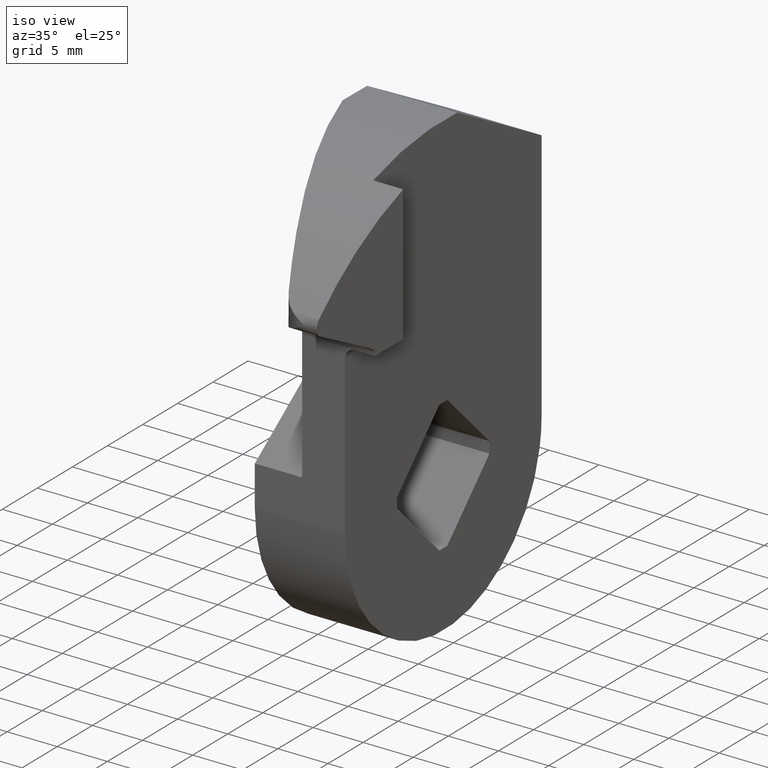
[diagram: clean part render]
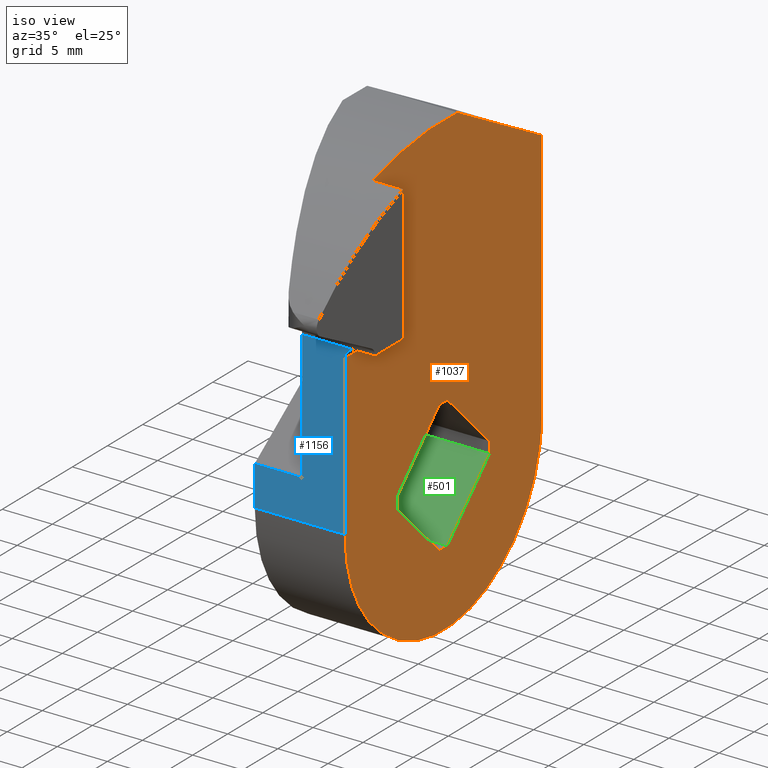
[diagram: same view with three faces highlighted in distinct colors, each labeled with its STEP entity id]
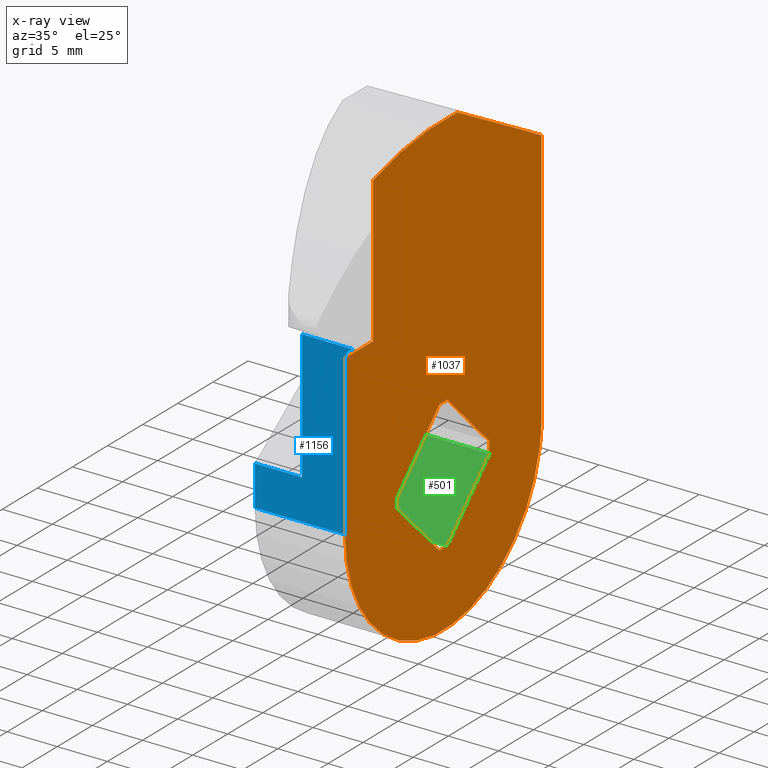
[diagram: x-ray of the same camera — body ghosted, the three highlighted faces saturated]
A machine part, iso view with three faces highlighted in distinct colors.
The next image is the same camera in x-ray (body ghosted, the three faces saturated) — at least one of them is partly hidden behind the body in this view.
Their STEP definitions:

[orange] entity #1037 — the highlighted face is a freeform B-spline surface patch.
#363=CARTESIAN_POINT('',(9.000000000000119,-6.575677091096340,0.566101398693485));
#364=VERTEX_POINT('',#363);
#370=CARTESIAN_POINT('',(9.000000000000119,-6.575677091094510,-0.566101398766254));
#371=VERTEX_POINT('',#370);
#372=CARTESIAN_POINT('',(9.000000000000119,-6.575677091096337,0.566101398693484));
#373=CARTESIAN_POINT('',(9.000000000000119,-6.624412877418935,-3.646480E-011));
#374=CARTESIAN_POINT('',(9.000000000000119,-6.575677091094510,-0.566101398766254));
#382=(BOUNDED_CURVE()B_SPLINE_CURVE(2,(#372,#373,#374),.UNSPECIFIED.,.F.,.U.)CURVE()GEOMETRIC_REPRESENTATION_ITEM()QUASI_UNIFORM_CURVE()RATIONAL_B_SPLINE_CURVE((1.0,0.996314710772021,1.0))REPRESENTATION_ITEM(''));
#383=EDGE_CURVE('',#364,#371,#382,.T.);
#406=CARTESIAN_POINT('',(9.000000000000119,-0.566101399067535,-6.575677091092260));
#407=VERTEX_POINT('',#406);
#408=CARTESIAN_POINT('',(9.000000000000119,-0.566101399067535,-6.575677091092260));
#409=CARTESIAN_POINT('',(9.000000000000119,-6.575677091094510,-0.566101398766254));
#410=QUASI_UNIFORM_CURVE('',1,(#408,#409),.UNSPECIFIED.,.F.,.U.);
#411=EDGE_CURVE('',#407,#371,#410,.T.);
#451=CARTESIAN_POINT('',(9.000000000000119,0.566101398740173,-6.575677091120500));
#452=VERTEX_POINT('',#451);
#453=CARTESIAN_POINT('',(9.000000000000119,-0.566101399067535,-6.575677091092261));
#454=CARTESIAN_POINT('',(9.000000000000119,-1.648992E-010,-6.624412877459905));
#455=CARTESIAN_POINT('',(9.000000000000119,0.566101398740173,-6.575677091120500));
#463=(BOUNDED_CURVE()B_SPLINE_CURVE(2,(#453,#454,#455),.UNSPECIFIED.,.F.,.U.)CURVE()GEOMETRIC_REPRESENTATION_ITEM()QUASI_UNIFORM_CURVE()RATIONAL_B_SPLINE_CURVE((1.0,0.996314710769752,1.0))REPRESENTATION_ITEM(''));
#464=EDGE_CURVE('',#407,#452,#463,.T.);
#487=CARTESIAN_POINT('',(9.000000000000119,6.575677091096139,-0.566101398745434));
#488=VERTEX_POINT('',#487);
#489=CARTESIAN_POINT('',(9.000000000000119,6.575677091096139,-0.566101398745434));
#490=CARTESIAN_POINT('',(9.000000000000119,0.566101398740173,-6.575677091120500));
#491=QUASI_UNIFORM_CURVE('',1,(#489,#490),.UNSPECIFIED.,.F.,.U.);
#492=EDGE_CURVE('',#488,#452,#491,.T.);
#532=CARTESIAN_POINT('',(9.000000000000119,6.575677091064520,0.566101399061946));
#533=VERTEX_POINT('',#532);
#534=CARTESIAN_POINT('',(9.000000000000119,6.575677091096138,-0.566101398745436));
#535=CARTESIAN_POINT('',(9.000000000000119,6.624412877433810,1.596133E-010));
#536=CARTESIAN_POINT('',(9.000000000000119,6.575677091064520,0.566101399061946));
#544=(BOUNDED_CURVE()B_SPLINE_CURVE(2,(#534,#535,#536),.UNSPECIFIED.,.F.,.U.)CURVE()GEOMETRIC_REPRESENTATION_ITEM()QUASI_UNIFORM_CURVE()RATIONAL_B_SPLINE_CURVE((1.0,0.996314710769754,1.0))REPRESENTATION_ITEM(''));
#545=EDGE_CURVE('',#488,#533,#544,.T.);
#568=CARTESIAN_POINT('',(9.000000000000119,0.566101399067335,6.575677091040300));
#569=VERTEX_POINT('',#568);
#570=CARTESIAN_POINT('',(9.000000000000119,0.566101399067335,6.575677091040300));
#571=CARTESIAN_POINT('',(9.000000000000119,6.575677091064520,0.566101399061946));
#572=QUASI_UNIFORM_CURVE('',1,(#570,#571),.UNSPECIFIED.,.F.,.U.);
#573=EDGE_CURVE('',#569,#533,#572,.T.);
#613=CARTESIAN_POINT('',(9.000000000000119,-0.566101398740303,6.575677091068470));
#614=VERTEX_POINT('',#613);
#615=CARTESIAN_POINT('',(9.000000000000119,0.566101399067336,6.575677091040299));
#616=CARTESIAN_POINT('',(9.000000000000119,1.647282E-010,6.624412877407941));
#617=CARTESIAN_POINT('',(9.000000000000119,-0.566101398740302,6.575677091068471));
#625=(BOUNDED_CURVE()B_SPLINE_CURVE(2,(#615,#616,#617),.UNSPECIFIED.,.F.,.U.)CURVE()GEOMETRIC_REPRESENTATION_ITEM()QUASI_UNIFORM_CURVE()RATIONAL_B_SPLINE_CURVE((1.0,0.996314710769752,1.0))REPRESENTATION_ITEM(''));
#626=EDGE_CURVE('',#569,#614,#625,.T.);
#647=CARTESIAN_POINT('',(9.000000000000119,-6.575677091096340,0.566101398693485));
#648=CARTESIAN_POINT('',(9.000000000000119,-0.566101398740303,6.575677091068470));
#649=QUASI_UNIFORM_CURVE('',1,(#647,#648),.UNSPECIFIED.,.F.,.U.);
#650=EDGE_CURVE('',#364,#614,#649,.T.);
#670=CARTESIAN_POINT('',(9.000000000000119,-14.000000000046020,15.896964971914050));
#671=VERTEX_POINT('',#670);
#687=CARTESIAN_POINT('',(9.000000000000108,-9.999999999979409,15.896964971914150));
#688=VERTEX_POINT('',#687);
#689=CARTESIAN_POINT('',(9.000000000000108,-9.999999999979409,15.896964971914150));
#690=CARTESIAN_POINT('',(9.000000000000119,-14.000000000046020,15.896964971914050));
#691=QUASI_UNIFORM_CURVE('',1,(#689,#690),.UNSPECIFIED.,.F.,.U.);
#692=EDGE_CURVE('',#688,#671,#691,.T.);
#878=CARTESIAN_POINT('',(9.000000000000119,-10.000000000021419,30.397368307108199));
#879=VERTEX_POINT('',#878);
#880=CARTESIAN_POINT('',(9.000000000000108,-9.999999999979409,15.896964971914150));
#881=CARTESIAN_POINT('',(9.000000000000119,-10.000000000021419,30.397368307108199));
#882=QUASI_UNIFORM_CURVE('',1,(#880,#881),.UNSPECIFIED.,.F.,.U.);
#883=EDGE_CURVE('',#688,#879,#882,.T.);
#967=CARTESIAN_POINT('',(9.000000000000108,-15.398599945778880,34.297687826073840));
#968=CARTESIAN_POINT('',(9.000000000000108,15.398600696751391,34.297687826073840));
#969=CARTESIAN_POINT('',(9.000000000000108,-15.398599945778880,-16.297700569757410));
#970=CARTESIAN_POINT('',(9.000000000000108,15.398600696751391,-16.297700569757410));
#971=B_SPLINE_SURFACE_WITH_KNOTS('',1,1,((#967,#969),(#968,#970)),.UNSPECIFIED.,.F.,.F.,.U.,(2,2),(2,2),(0.0,30.797200642530271),(0.0,50.595388395831250),.UNSPECIFIED.);
#972=ORIENTED_EDGE('',*,*,#883,.F.);
#973=ORIENTED_EDGE('',*,*,#692,.T.);
#974=CARTESIAN_POINT('',(9.000000000000119,-14.0,-2.620831E-011));
#975=VERTEX_POINT('',#974);
#976=CARTESIAN_POINT('',(9.000000000000119,-14.0,-2.620831E-011));
#977=CARTESIAN_POINT('',(9.000000000000119,-14.000000000046020,15.896964971914050));
#978=QUASI_UNIFORM_CURVE('',1,(#976,#977),.UNSPECIFIED.,.F.,.U.);
#979=EDGE_CURVE('',#975,#671,#978,.T.);
#980=ORIENTED_EDGE('',*,*,#979,.F.);
#981=CARTESIAN_POINT('',(9.000000000000119,14.0,-2.598191E-011));
#982=VERTEX_POINT('',#981);
#983=CARTESIAN_POINT('',(9.000000000000119,-14.0,-2.620831E-011));
#984=CARTESIAN_POINT('',(9.000000000000119,-13.999999999999929,-14.000000000026098));
#985=CARTESIAN_POINT('',(9.000000000000119,7.105427E-014,-14.000000000026100));
#986=CARTESIAN_POINT('',(9.000000000000119,14.000000000000071,-14.000000000026098));
#987=CARTESIAN_POINT('',(9.000000000000119,14.0,-2.598191E-011));
#995=(BOUNDED_CURVE()B_SPLINE_CURVE(2,(#983,#984,#985,#986,#987),.UNSPECIFIED.,.F.,.U.)B_SPLINE_CURVE_WITH_KNOTS((3,2,3),(0.0,0.500000000000000,1.0),.UNSPECIFIED.)CURVE()GEOMETRIC_REPRESENTATION_ITEM()RATIONAL_B_SPLINE_CURVE((1.0,0.707106781186547,1.0,0.707106781186547,1.0))REPRESENTATION_ITEM(''));
#996=EDGE_CURVE('',#975,#982,#995,.T.);
#997=ORIENTED_EDGE('',*,*,#996,.T.);
#998=CARTESIAN_POINT('',(9.000000000000119,13.999999999982441,25.300000000086751));
#999=VERTEX_POINT('',#998);
#1000=CARTESIAN_POINT('',(9.000000000000119,13.999999999982441,25.300000000086751));
#1001=CARTESIAN_POINT('',(9.000000000000119,14.0,-2.598191E-011));
#1002=QUASI_UNIFORM_CURVE('',1,(#1000,#1001),.UNSPECIFIED.,.F.,.U.);
#1003=EDGE_CURVE('',#999,#982,#1002,.T.);
#1004=ORIENTED_EDGE('',*,*,#1003,.F.);
#1005=CARTESIAN_POINT('',(9.000000000000119,2.000000000209915,31.937438845303401));
#1006=VERTEX_POINT('',#1005);
#1007=CARTESIAN_POINT('',(9.000000000000119,2.000000000209915,31.937438845303401));
#1008=CARTESIAN_POINT('',(9.000000000000119,13.999999999982441,25.300000000086751));
#1009=QUASI_UNIFORM_CURVE('',1,(#1007,#1008),.UNSPECIFIED.,.F.,.U.);
#1010=EDGE_CURVE('',#1006,#999,#1009,.T.);
#1011=ORIENTED_EDGE('',*,*,#1010,.F.);
#1012=CARTESIAN_POINT('',(9.000000000000119,2.000000000209921,31.937438845303380));
#1013=CARTESIAN_POINT('',(9.000000000000119,-4.148238578822799,32.322456479901653));
#1014=CARTESIAN_POINT('',(9.000000000000119,-10.000000000021389,30.397368307108170));
#1022=(BOUNDED_CURVE()B_SPLINE_CURVE(2,(#1012,#1013,#1014),.UNSPECIFIED.,.F.,.U.)CURVE()GEOMETRIC_REPRESENTATION_ITEM()QUASI_UNIFORM_CURVE()RATIONAL_B_SPLINE_CURVE((1.0,0.981969802514193,1.0))REPRESENTATION_ITEM(''));
#1023=EDGE_CURVE('',#1006,#879,#1022,.T.);
#1024=ORIENTED_EDGE('',*,*,#1023,.T.);
#1025=EDGE_LOOP('',(#972,#973,#980,#997,#1004,#1011,#1024));
#1026=FACE_OUTER_BOUND('',#1025,.T.);
#1027=ORIENTED_EDGE('',*,*,#650,.T.);
#1028=ORIENTED_EDGE('',*,*,#626,.F.);
#1029=ORIENTED_EDGE('',*,*,#573,.T.);
#1030=ORIENTED_EDGE('',*,*,#545,.F.);
#1031=ORIENTED_EDGE('',*,*,#492,.T.);
#1032=ORIENTED_EDGE('',*,*,#464,.F.);
#1033=ORIENTED_EDGE('',*,*,#411,.T.);
#1034=ORIENTED_EDGE('',*,*,#383,.F.);
#1035=EDGE_LOOP('',(#1027,#1028,#1029,#1030,#1031,#1032,#1033,#1034));
#1036=FACE_BOUND('',#1035,.T.);
#1037=ADVANCED_FACE('',(#1026,#1036),#971,.F.);

[blue] entity #1156 — the highlighted face is a freeform B-spline surface patch.
#58=CARTESIAN_POINT('',(4.622499999999860,-14.000000000011500,3.999999999987105));
#59=VERTEX_POINT('',#58);
#93=CARTESIAN_POINT('',(1.110223E-013,-14.000000000011500,3.999999999987105));
#94=VERTEX_POINT('',#93);
#100=CARTESIAN_POINT('',(4.622499999999860,-14.000000000011500,3.999999999987105));
#101=CARTESIAN_POINT('',(1.110223E-013,-14.000000000011500,3.999999999987105));
#102=QUASI_UNIFORM_CURVE('',1,(#100,#101),.UNSPECIFIED.,.F.,.U.);
#103=EDGE_CURVE('',#59,#94,#102,.T.);
#114=CARTESIAN_POINT('',(4.719941373838021,-14.000000000011500,3.999999999987105));
#115=VERTEX_POINT('',#114);
#116=CARTESIAN_POINT('',(4.719941373838021,-14.000000000011500,3.999999999987105));
#117=CARTESIAN_POINT('',(4.622499999999860,-14.000000000011500,3.999999999987105));
#118=QUASI_UNIFORM_CURVE('',1,(#116,#117),.UNSPECIFIED.,.F.,.U.);
#119=EDGE_CURVE('',#115,#59,#118,.T.);
#254=CARTESIAN_POINT('',(4.719941375153640,-14.000000000048701,16.896964971924351));
#255=VERTEX_POINT('',#254);
#256=CARTESIAN_POINT('',(4.719941373838021,-14.000000000011500,3.999999999987105));
#257=CARTESIAN_POINT('',(4.719941375153640,-14.000000000048701,16.896964971924351));
#258=QUASI_UNIFORM_CURVE('',1,(#256,#257),.UNSPECIFIED.,.F.,.U.);
#259=EDGE_CURVE('',#115,#255,#258,.T.);
#670=CARTESIAN_POINT('',(9.000000000000119,-14.000000000046020,15.896964971914050));
#671=VERTEX_POINT('',#670);
#672=CARTESIAN_POINT('',(10.000000000000121,-14.000000000048921,16.896964971914048));
#673=VERTEX_POINT('',#672);
#674=CARTESIAN_POINT('',(9.000000000000119,-14.000000000046020,15.896964971914050));
#675=CARTESIAN_POINT('',(9.000000000000119,-14.000000000048921,16.896964971914056));
#676=CARTESIAN_POINT('',(10.000000000000121,-14.000000000048921,16.896964971914048));
#684=(BOUNDED_CURVE()B_SPLINE_CURVE(2,(#674,#675,#676),.UNSPECIFIED.,.F.,.U.)CURVE()GEOMETRIC_REPRESENTATION_ITEM()QUASI_UNIFORM_CURVE()RATIONAL_B_SPLINE_CURVE((1.0,0.707106781186548,1.0))REPRESENTATION_ITEM(''));
#685=EDGE_CURVE('',#671,#673,#684,.T.);
#787=CARTESIAN_POINT('',(10.000000000000121,-14.000000000048921,16.896964971914048));
#788=CARTESIAN_POINT('',(4.719941375153640,-14.000000000048701,16.896964971924351));
#789=QUASI_UNIFORM_CURVE('',1,(#787,#788),.UNSPECIFIED.,.F.,.U.);
#790=EDGE_CURVE('',#673,#255,#789,.T.);
#931=CARTESIAN_POINT('',(1.110223E-013,-14.0,-2.620831E-011));
#932=VERTEX_POINT('',#931);
#948=CARTESIAN_POINT('',(1.110223E-013,-14.0,-2.620831E-011));
#949=CARTESIAN_POINT('',(1.110223E-013,-14.000000000011500,3.999999999987105));
#950=QUASI_UNIFORM_CURVE('',1,(#948,#949),.UNSPECIFIED.,.F.,.U.);
#951=EDGE_CURVE('',#932,#94,#950,.T.);
#974=CARTESIAN_POINT('',(9.000000000000119,-14.0,-2.620831E-011));
#975=VERTEX_POINT('',#974);
#976=CARTESIAN_POINT('',(9.000000000000119,-14.0,-2.620831E-011));
#977=CARTESIAN_POINT('',(9.000000000000119,-14.000000000046020,15.896964971914050));
#978=QUASI_UNIFORM_CURVE('',1,(#976,#977),.UNSPECIFIED.,.F.,.U.);
#979=EDGE_CURVE('',#975,#671,#978,.T.);
#1063=CARTESIAN_POINT('',(9.000000000000119,-14.0,-2.620831E-011));
#1064=CARTESIAN_POINT('',(1.110223E-013,-14.0,-2.620831E-011));
#1065=QUASI_UNIFORM_CURVE('',1,(#1063,#1064),.UNSPECIFIED.,.F.,.U.);
#1066=EDGE_CURVE('',#975,#932,#1065,.T.);
#1141=CARTESIAN_POINT('',(-0.499499980617949,-14.000000000051450,17.740968498140312));
#1142=CARTESIAN_POINT('',(-0.499499980617949,-13.999999999997550,-0.844003828383440));
#1143=CARTESIAN_POINT('',(10.499500248839080,-14.000000000051450,17.740968498140312));
#1144=CARTESIAN_POINT('',(10.499500248839080,-13.999999999997550,-0.844003828383440));
#1145=B_SPLINE_SURFACE_WITH_KNOTS('',1,1,((#1141,#1143),(#1142,#1144)),.UNSPECIFIED.,.F.,.F.,.U.,(2,2),(2,2),(0.0,18.584972326523740),(0.0,10.999000229457030),.UNSPECIFIED.);
#1146=ORIENTED_EDGE('',*,*,#259,.F.);
#1147=ORIENTED_EDGE('',*,*,#119,.T.);
#1148=ORIENTED_EDGE('',*,*,#103,.T.);
#1149=ORIENTED_EDGE('',*,*,#951,.F.);
#1150=ORIENTED_EDGE('',*,*,#1066,.F.);
#1151=ORIENTED_EDGE('',*,*,#979,.T.);
#1152=ORIENTED_EDGE('',*,*,#685,.T.);
#1153=ORIENTED_EDGE('',*,*,#790,.T.);
#1154=EDGE_LOOP('',(#1146,#1147,#1148,#1149,#1150,#1151,#1152,#1153));
#1155=FACE_OUTER_BOUND('',#1154,.T.);
#1156=ADVANCED_FACE('',(#1155),#1145,.T.);

[green] entity #501 — the highlighted face is a freeform B-spline surface patch.
#435=CARTESIAN_POINT('',(1.110223E-013,0.566101398740173,-6.575677091120500));
#436=VERTEX_POINT('',#435);
#451=CARTESIAN_POINT('',(9.000000000000119,0.566101398740173,-6.575677091120500));
#452=VERTEX_POINT('',#451);
#466=CARTESIAN_POINT('',(9.000000000000119,0.566101398740173,-6.575677091120500));
#467=CARTESIAN_POINT('',(1.110223E-013,0.566101398740173,-6.575677091120500));
#468=QUASI_UNIFORM_CURVE('',1,(#466,#467),.UNSPECIFIED.,.F.,.U.);
#469=EDGE_CURVE('',#452,#436,#468,.T.);
#474=CARTESIAN_POINT('',(-0.449549982556143,0.265923182438736,-6.875855307422888));
#475=CARTESIAN_POINT('',(-0.449549982556143,6.875855092478427,-0.265923397362249));
#476=CARTESIAN_POINT('',(9.449550223955185,0.265923182438736,-6.875855307422888));
#477=CARTESIAN_POINT('',(9.449550223955185,6.875855092478427,-0.265923397362249));
#478=B_SPLINE_SURFACE_WITH_KNOTS('',1,1,((#474,#476),(#475,#477)),.UNSPECIFIED.,.F.,.F.,.U.,(2,2),(2,2),(0.0,9.347855353555639),(0.0,9.899100206511328),.UNSPECIFIED.);
#479=CARTESIAN_POINT('',(1.110223E-013,6.575677091096139,-0.566101398745434));
#480=VERTEX_POINT('',#479);
#481=CARTESIAN_POINT('',(1.110223E-013,6.575677091096139,-0.566101398745434));
#482=CARTESIAN_POINT('',(1.110223E-013,0.566101398740173,-6.575677091120500));
#483=QUASI_UNIFORM_CURVE('',1,(#481,#482),.UNSPECIFIED.,.F.,.U.);
#484=EDGE_CURVE('',#480,#436,#483,.T.);
#485=ORIENTED_EDGE('',*,*,#484,.T.);
#486=ORIENTED_EDGE('',*,*,#469,.F.);
#487=CARTESIAN_POINT('',(9.000000000000119,6.575677091096139,-0.566101398745434));
#488=VERTEX_POINT('',#487);
#489=CARTESIAN_POINT('',(9.000000000000119,6.575677091096139,-0.566101398745434));
#490=CARTESIAN_POINT('',(9.000000000000119,0.566101398740173,-6.575677091120500));
#491=QUASI_UNIFORM_CURVE('',1,(#489,#490),.UNSPECIFIED.,.F.,.U.);
#492=EDGE_CURVE('',#488,#452,#491,.T.);
#493=ORIENTED_EDGE('',*,*,#492,.F.);
#494=CARTESIAN_POINT('',(9.000000000000119,6.575677091096139,-0.566101398745434));
#495=CARTESIAN_POINT('',(1.110223E-013,6.575677091096139,-0.566101398745434));
#496=QUASI_UNIFORM_CURVE('',1,(#494,#495),.UNSPECIFIED.,.F.,.U.);
#497=EDGE_CURVE('',#488,#480,#496,.T.);
#498=ORIENTED_EDGE('',*,*,#497,.T.);
#499=EDGE_LOOP('',(#485,#486,#493,#498));
#500=FACE_OUTER_BOUND('',#499,.T.);
#501=ADVANCED_FACE('',(#500),#478,.F.);